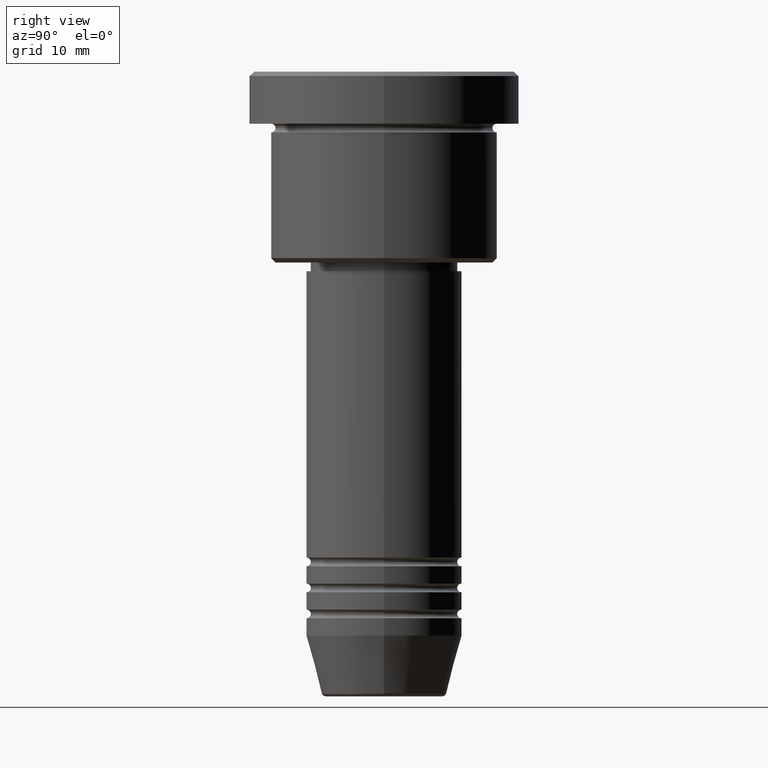
[diagram: clean part render]
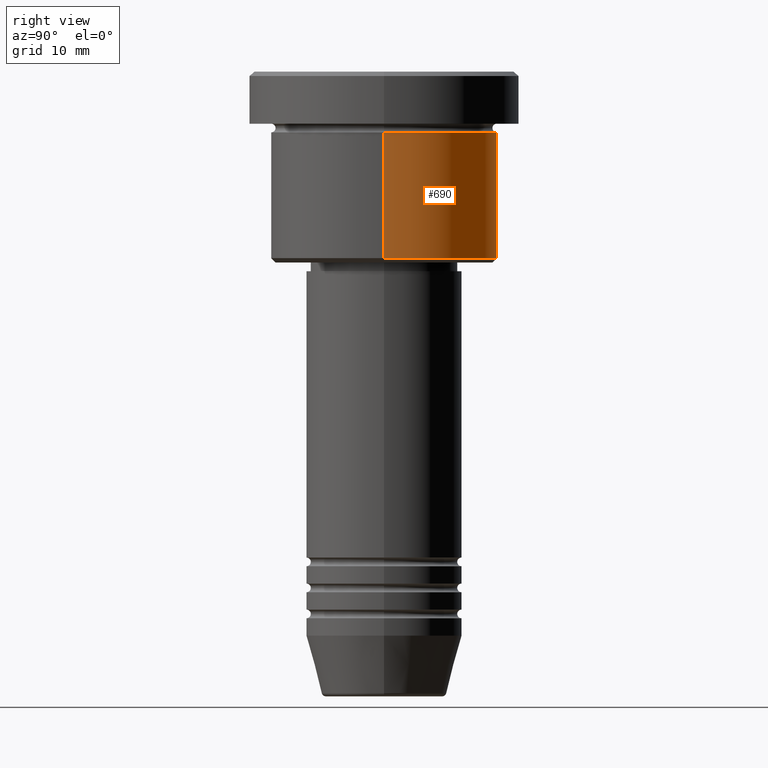
[diagram: same view with one face highlighted and labeled with its STEP entity id]
A machine part, right view. The second image highlights one B-rep face of the part: STEP entity #690.
In plain terms, the highlighted cylindrical surface (partial cylindrical patch) has radius 13 mm, axis along (-0, -0, 1).
Its self-contained STEP definition (entity closure, byte-faithful):
#52 = VERTEX_POINT ( 'NONE', #842 ) ;
#177 = CARTESIAN_POINT ( 'NONE',  ( -13.00000000000000000, 1.592040838891559095E-15, -6.999999999999995559 ) ) ;
#187 = EDGE_CURVE ( 'NONE', #980, #237, #410, .T. ) ;
#188 = DIRECTION ( 'NONE',  ( -0.000000000000000000, -0.000000000000000000, 1.000000000000000000 ) ) ;
#193 = VECTOR ( 'NONE', #449, 1000.000000000000000 ) ;
#209 = CARTESIAN_POINT ( 'NONE',  ( -13.00000000000000000, 1.592040838891559095E-15, -21.49999999999997868 ) ) ;
#223 = EDGE_CURVE ( 'NONE', #52, #980, #987, .T. ) ;
#237 = VERTEX_POINT ( 'NONE', #177 ) ;
#263 = EDGE_CURVE ( 'NONE', #878, #237, #645, .T. ) ;
#410 = CIRCLE ( 'NONE', #1121, 13.00000000000000000 ) ;
#421 = EDGE_LOOP ( 'NONE', ( #789, #1142, #972, #460 ) ) ;
#449 = DIRECTION ( 'NONE',  ( -0.000000000000000000, -0.000000000000000000, 1.000000000000000000 ) ) ;
#460 = ORIENTED_EDGE ( 'NONE', *, *, #223, .F. ) ;
#547 = CARTESIAN_POINT ( 'NONE',  ( -13.00000000000000000, 1.592040838891559095E-15, 0.000000000000000000 ) ) ;
#620 = DIRECTION ( 'NONE',  ( 1.000000000000000000, 0.000000000000000000, 0.000000000000000000 ) ) ;
#645 = LINE ( 'NONE', #547, #193 ) ;
#690 = ADVANCED_FACE ( 'NONE', ( #913 ), #898, .T. ) ;
#706 = CARTESIAN_POINT ( 'NONE',  ( 13.00000000000000000, 0.000000000000000000, -6.999999999999995559 ) ) ;
#752 = EDGE_CURVE ( 'NONE', #52, #878, #766, .T. ) ;
#766 = CIRCLE ( 'NONE', #1008, 13.00000000000000000 ) ;
#789 = ORIENTED_EDGE ( 'NONE', *, *, #752, .T. ) ;
#808 = AXIS2_PLACEMENT_3D ( 'NONE', #994, #1080, #620 ) ;
#842 = CARTESIAN_POINT ( 'NONE',  ( 13.00000000000000000, 0.000000000000000000, -21.49999999999997868 ) ) ;
#878 = VERTEX_POINT ( 'NONE', #209 ) ;
#895 = DIRECTION ( 'NONE',  ( 1.000000000000000000, 0.000000000000000000, 0.000000000000000000 ) ) ;
#898 = CYLINDRICAL_SURFACE ( 'NONE', #808, 13.00000000000000000 ) ;
#907 = DIRECTION ( 'NONE',  ( -1.000000000000000000, 0.000000000000000000, 0.000000000000000000 ) ) ;
#913 = FACE_OUTER_BOUND ( 'NONE', #421, .T. ) ;
#917 = DIRECTION ( 'NONE',  ( -0.000000000000000000, -0.000000000000000000, 1.000000000000000000 ) ) ;
#918 = CARTESIAN_POINT ( 'NONE',  ( 13.00000000000000000, 0.000000000000000000, 0.000000000000000000 ) ) ;
#938 = VECTOR ( 'NONE', #188, 1000.000000000000000 ) ;
#972 = ORIENTED_EDGE ( 'NONE', *, *, #187, .F. ) ;
#980 = VERTEX_POINT ( 'NONE', #706 ) ;
#981 = DIRECTION ( 'NONE',  ( -0.000000000000000000, -0.000000000000000000, 1.000000000000000000 ) ) ;
#987 = LINE ( 'NONE', #918, #938 ) ;
#994 = CARTESIAN_POINT ( 'NONE',  ( 0.000000000000000000, 0.000000000000000000, 0.000000000000000000 ) ) ;
#1002 = CARTESIAN_POINT ( 'NONE',  ( 0.000000000000000000, 0.000000000000000000, -6.999999999999995559 ) ) ;
#1008 = AXIS2_PLACEMENT_3D ( 'NONE', #1173, #917, #907 ) ;
#1080 = DIRECTION ( 'NONE',  ( -0.000000000000000000, -0.000000000000000000, 1.000000000000000000 ) ) ;
#1121 = AXIS2_PLACEMENT_3D ( 'NONE', #1002, #981, #895 ) ;
#1142 = ORIENTED_EDGE ( 'NONE', *, *, #263, .T. ) ;
#1173 = CARTESIAN_POINT ( 'NONE',  ( 0.000000000000000000, 0.000000000000000000, -21.49999999999997868 ) ) ;